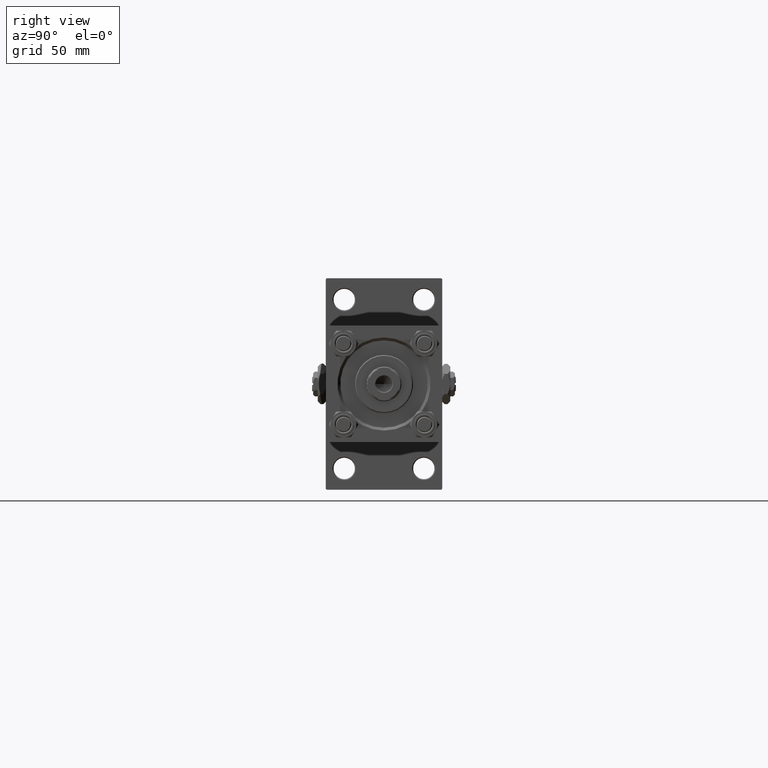
[diagram: clean part render]
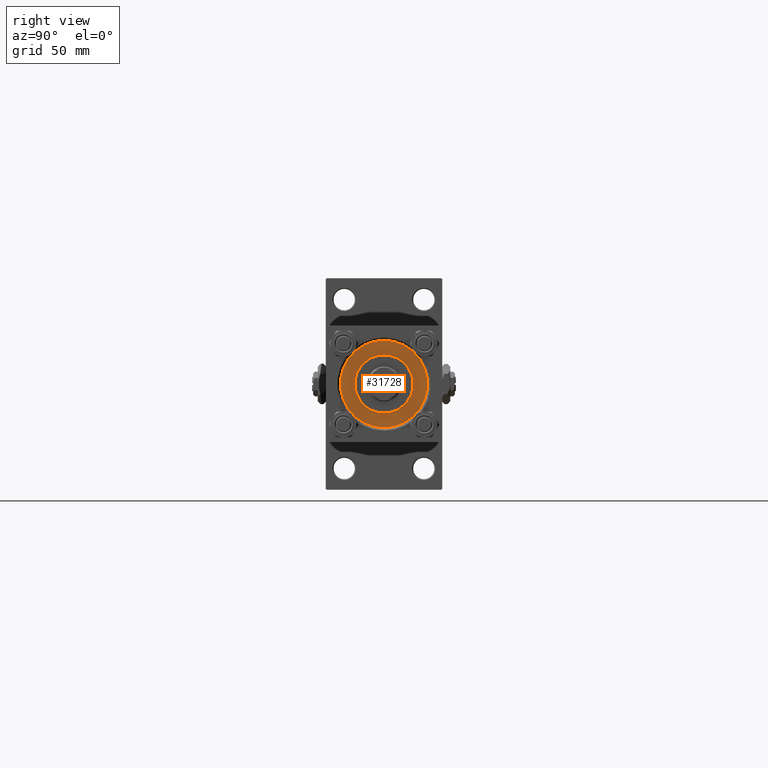
[diagram: same view with one face highlighted and labeled with its STEP entity id]
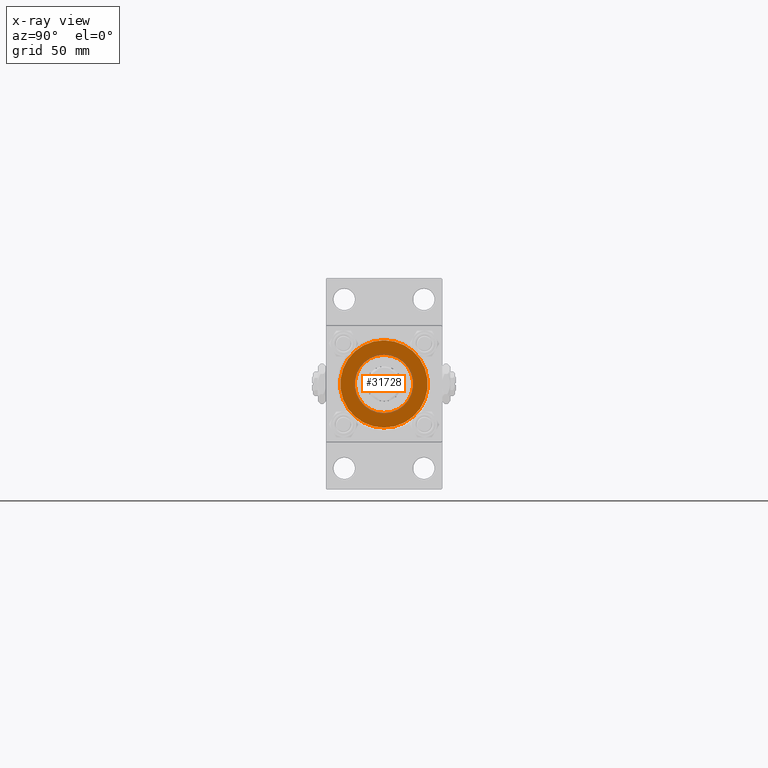
[diagram: x-ray of the same camera — body ghosted, the highlighted face saturated]
A machine part, right view. The second image highlights one B-rep face of the part: STEP entity #31728.
The next image is the same camera in x-ray: the body ghosted, the highlighted face saturated — about 0% of this face is hidden behind the body in this view.
In plain terms, the highlighted planar face has unit normal (1, 0, 0).
Its self-contained STEP definition (entity closure, byte-faithful):
#551 = VERTEX_POINT ( 'NONE', #3268 ) ;
#728 = DIRECTION ( 'NONE',  ( 0.000000000000000000, 0.000000000000000000, 1.000000000000000000 ) ) ;
#1239 = DIRECTION ( 'NONE',  ( 1.000000000000000000, 0.000000000000000000, 0.000000000000000000 ) ) ;
#1411 = EDGE_LOOP ( 'NONE', ( #17590, #22539 ) ) ;
#2085 = CIRCLE ( 'NONE', #4589, 15.00000000000000000 ) ;
#3268 = CARTESIAN_POINT ( 'NONE',  ( 15.00000000000000000, 1.836970198721029589E-15, 28.69999999999999929 ) ) ;
#4497 = ORIENTED_EDGE ( 'NONE', *, *, #31520, .T. ) ;
#4589 = AXIS2_PLACEMENT_3D ( 'NONE', #26603, #46996, #38388 ) ;
#7773 = CARTESIAN_POINT ( 'NONE',  ( -15.00000000000000000, 0.000000000000000000, 28.69999999999999929 ) ) ;
#7849 = CIRCLE ( 'NONE', #26285, 22.50000000000000355 ) ;
#9143 = DIRECTION ( 'NONE',  ( 0.000000000000000000, 0.000000000000000000, 1.000000000000000000 ) ) ;
#9970 = ORIENTED_EDGE ( 'NONE', *, *, #49920, .T. ) ;
#10193 = VERTEX_POINT ( 'NONE', #50744 ) ;
#10848 = DIRECTION ( 'NONE',  ( 0.000000000000000000, 0.000000000000000000, 1.000000000000000000 ) ) ;
#11100 = CARTESIAN_POINT ( 'NONE',  ( 0.000000000000000000, 0.000000000000000000, 28.69999999999999929 ) ) ;
#13373 = AXIS2_PLACEMENT_3D ( 'NONE', #11100, #10848, #38865 ) ;
#17590 = ORIENTED_EDGE ( 'NONE', *, *, #33051, .F. ) ;
#18278 = DIRECTION ( 'NONE',  ( 0.000000000000000000, 0.000000000000000000, 1.000000000000000000 ) ) ;
#20413 = CARTESIAN_POINT ( 'NONE',  ( 0.000000000000000000, 0.000000000000000000, 28.69999999999999929 ) ) ;
#22539 = ORIENTED_EDGE ( 'NONE', *, *, #48019, .F. ) ;
#23624 = CARTESIAN_POINT ( 'NONE',  ( 22.50000000000000355, 2.755455298081545172E-15, 28.69999999999999929 ) ) ;
#25346 = FACE_OUTER_BOUND ( 'NONE', #48253, .T. ) ;
#26285 = AXIS2_PLACEMENT_3D ( 'NONE', #20413, #9143, #41084 ) ;
#26603 = CARTESIAN_POINT ( 'NONE',  ( 0.000000000000000000, 0.000000000000000000, 28.69999999999999929 ) ) ;
#30331 = VERTEX_POINT ( 'NONE', #23624 ) ;
#31520 = EDGE_CURVE ( 'NONE', #30331, #10193, #7849, .T. ) ;
#31728 = ADVANCED_FACE ( 'NONE', ( #38166, #25346 ), #45750, .T. ) ;
#33051 = EDGE_CURVE ( 'NONE', #42041, #551, #2085, .T. ) ;
#34288 = CIRCLE ( 'NONE', #13373, 15.00000000000000000 ) ;
#37120 = CARTESIAN_POINT ( 'NONE',  ( 0.000000000000000000, 0.000000000000000000, 28.69999999999999929 ) ) ;
#38166 = FACE_BOUND ( 'NONE', #1411, .T. ) ;
#38388 = DIRECTION ( 'NONE',  ( 1.000000000000000000, 0.000000000000000000, 0.000000000000000000 ) ) ;
#38507 = AXIS2_PLACEMENT_3D ( 'NONE', #37120, #728, #1239 ) ;
#38865 = DIRECTION ( 'NONE',  ( 1.000000000000000000, 0.000000000000000000, 0.000000000000000000 ) ) ;
#41084 = DIRECTION ( 'NONE',  ( 1.000000000000000000, 0.000000000000000000, 0.000000000000000000 ) ) ;
#41311 = CARTESIAN_POINT ( 'NONE',  ( 0.000000000000000000, 0.000000000000000000, 28.69999999999999929 ) ) ;
#42041 = VERTEX_POINT ( 'NONE', #7773 ) ;
#42997 = AXIS2_PLACEMENT_3D ( 'NONE', #41311, #18278, #46011 ) ;
#45750 = PLANE ( 'NONE',  #42997 ) ;
#46011 = DIRECTION ( 'NONE',  ( 1.000000000000000000, 0.000000000000000000, -0.000000000000000000 ) ) ;
#46996 = DIRECTION ( 'NONE',  ( 0.000000000000000000, 0.000000000000000000, 1.000000000000000000 ) ) ;
#47670 = CIRCLE ( 'NONE', #38507, 22.50000000000000355 ) ;
#48019 = EDGE_CURVE ( 'NONE', #551, #42041, #34288, .T. ) ;
#48253 = EDGE_LOOP ( 'NONE', ( #9970, #4497 ) ) ;
#49920 = EDGE_CURVE ( 'NONE', #10193, #30331, #47670, .T. ) ;
#50744 = CARTESIAN_POINT ( 'NONE',  ( -22.50000000000000355, 0.000000000000000000, 28.69999999999999929 ) ) ;